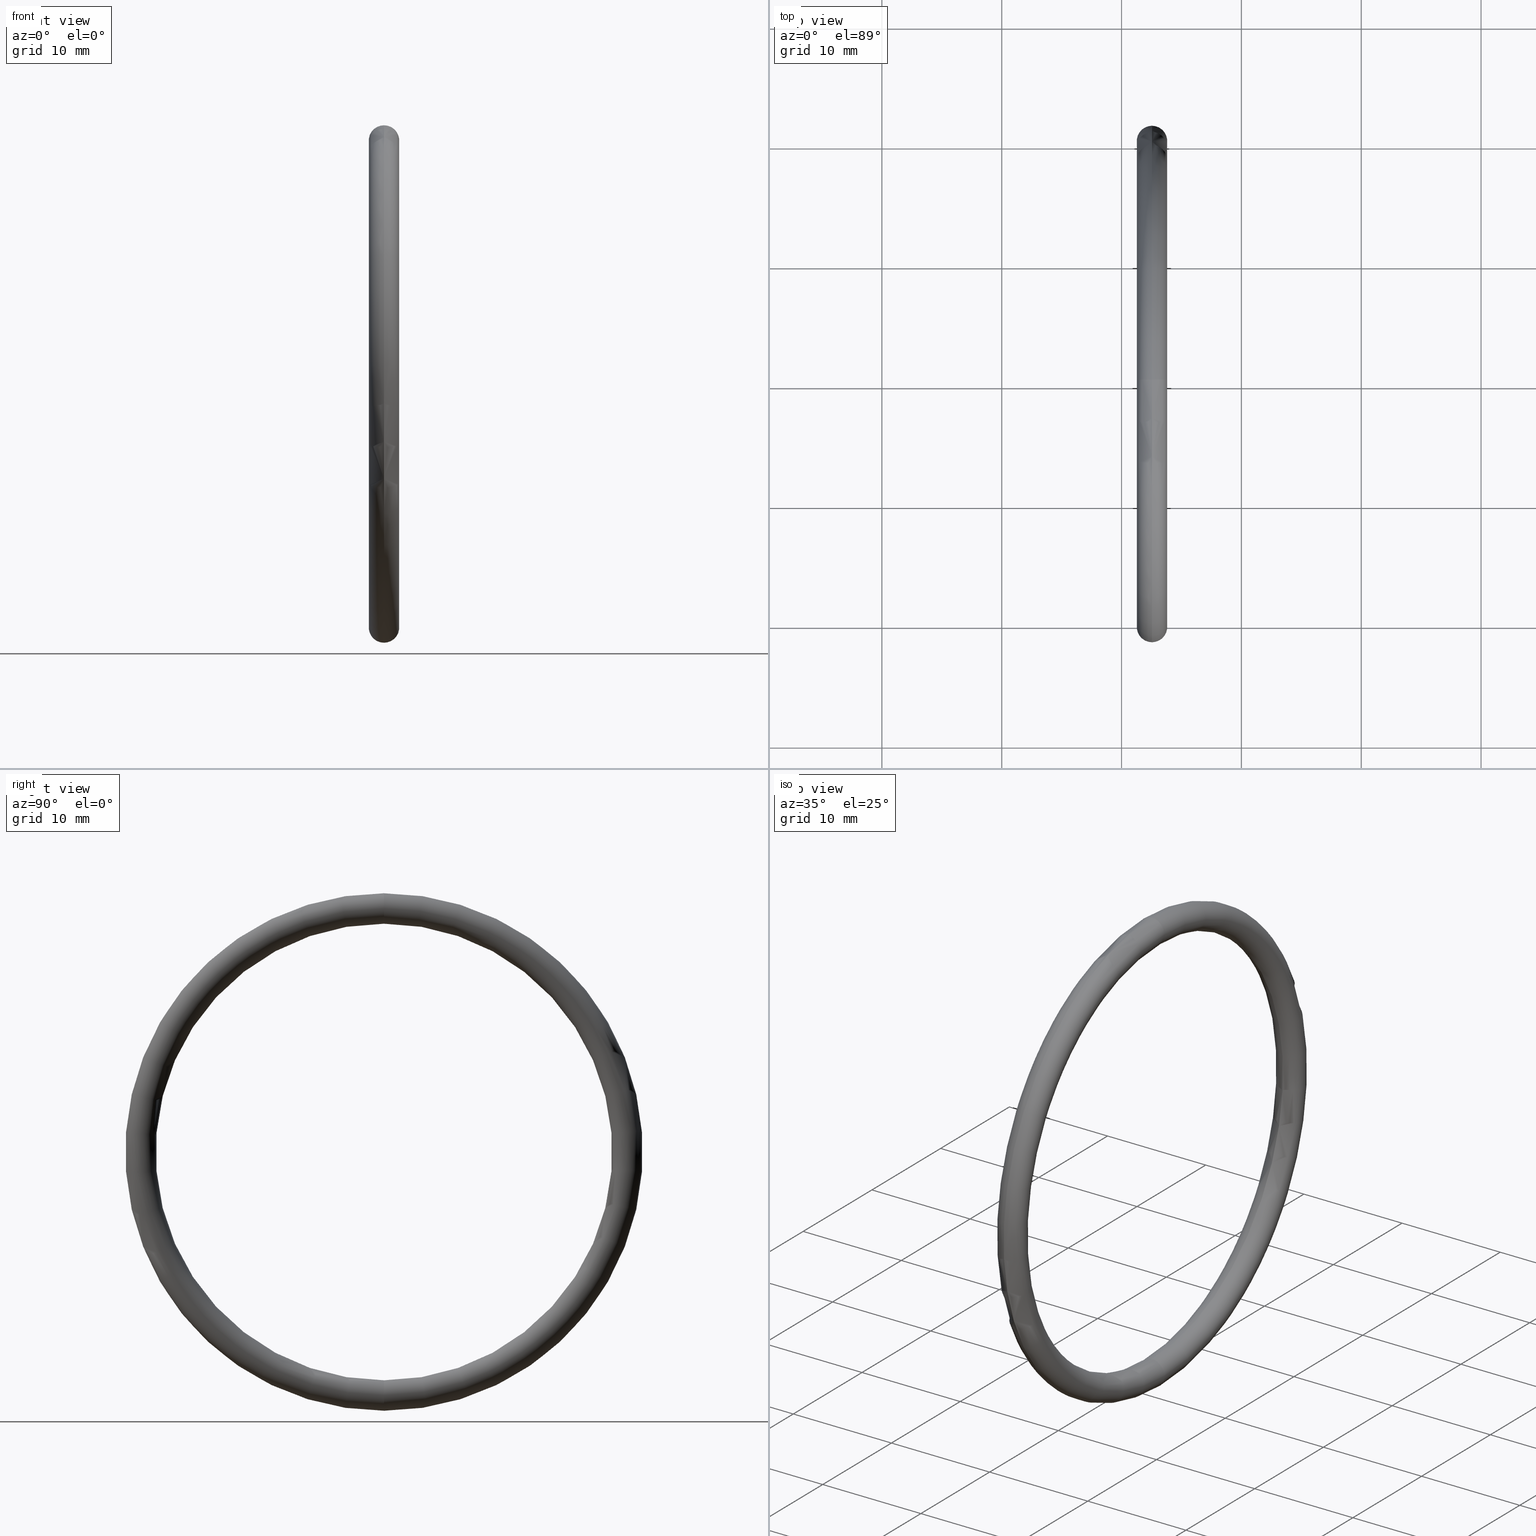
[diagram: canonical four-view strip — front | top / right | iso, engineering-drawing reading convention]
A machine part, canonical four-view strip (front | top / right | iso — engineering-drawing reading convention). The complete STEP part file that produces these views, byte-faithful:
ISO-10303-21;
HEADER;
FILE_DESCRIPTION (( 'STEP AP203' ),
    '1' );
FILE_NAME ('OR-54-SI.STEP',
    '2006-03-03T07:49:50',
    ( 'bay06' ),
    ( '' ),
    'SwSTEP 2.0',
    'SolidWorks 2008',
    '' );
FILE_SCHEMA (( 'CONFIG_CONTROL_DESIGN' ));
ENDSEC;

DATA;
#1 = PERSON_AND_ORGANIZATION ( #111, #125 ) ;
#2 = DIRECTION ( 'NONE',  ( 0.0000000000000000000, 0.0000000000000000000, 1.000000000000000000 ) ) ;
#3 = TOROIDAL_SURFACE ( 'NONE', #38, 0.8000000000000000400, 0.05000000000000000300 ) ;
#4 = CARTESIAN_POINT ( 'NONE',  ( 0.1000000000000001200, 0.0000000000000000000, 0.0000000000000000000 ) ) ;
#5 = DIRECTION ( 'NONE',  ( 0.0000000000000000000, 0.0000000000000000000, 1.000000000000000000 ) ) ;
#6 = DIRECTION ( 'NONE',  ( -1.000000000000000000, -0.0000000000000000000, -0.0000000000000000000 ) ) ;
#7 = CARTESIAN_POINT ( 'NONE',  ( 0.1000000000000001200, 0.0000000000000000000, 0.0000000000000000000 ) ) ;
#8 = AXIS2_PLACEMENT_3D ( 'NONE', #7, #6, #5 ) ;
#9 = CIRCLE ( 'NONE', #8, 0.7500000000000001100 ) ;
#10 = FACE_OUTER_BOUND ( 'NONE', #14, .T. ) ;
#11 = ORIENTED_EDGE ( 'NONE', *, *, #12, .F. ) ;
#12 = EDGE_CURVE ( 'NONE', #76, #82, #9, .T. ) ;
#13 = ADVANCED_FACE ( 'NONE', ( #10 ), #3, .T. ) ;
#14 = EDGE_LOOP ( 'NONE', ( #43, #47, #85, #49 ) ) ;
#15 = MANIFOLD_SOLID_BREP ( 'NONE', #42 ) ;
#16 = ADVANCED_FACE ( 'NONE', ( #39 ), #35, .T. ) ;
#17 = EDGE_LOOP ( 'NONE', ( #74, #77, #80, #11 ) ) ;
#18 = VERTEX_POINT ( 'NONE', #34 ) ;
#19 = DIRECTION ( 'NONE',  ( 0.0000000000000000000, 0.0000000000000000000, 1.000000000000000000 ) ) ;
#20 = DIRECTION ( 'NONE',  ( -1.000000000000000000, -0.0000000000000000000, -0.0000000000000000000 ) ) ;
#21 = AXIS2_PLACEMENT_3D ( 'NONE', #29, #20, #19 ) ;
#22 = CIRCLE ( 'NONE', #21, 0.8500000000000000900 ) ;
#23 = CARTESIAN_POINT ( 'NONE',  ( 0.1000000000000001200, 0.0000000000000000000, 0.0000000000000000000 ) ) ;
#24 = DIRECTION ( 'NONE',  ( 0.0000000000000000000, 0.0000000000000000000, -1.000000000000000000 ) ) ;
#25 = DIRECTION ( 'NONE',  ( 0.0000000000000000000, -1.000000000000000000, 0.0000000000000000000 ) ) ;
#26 = CARTESIAN_POINT ( 'NONE',  ( 0.1000000000000001200, 0.0000000000000000000, 0.8000000000000000400 ) ) ;
#27 = AXIS2_PLACEMENT_3D ( 'NONE', #26, #25, #24 ) ;
#28 = CIRCLE ( 'NONE', #27, 0.05000000000000001000 ) ;
#29 = CARTESIAN_POINT ( 'NONE',  ( 0.1000000000000001200, 0.0000000000000000000, 0.0000000000000000000 ) ) ;
#30 = DIRECTION ( 'NONE',  ( 0.0000000000000000000, 0.0000000000000000000, 1.000000000000000000 ) ) ;
#31 = DIRECTION ( 'NONE',  ( -1.000000000000000000, -0.0000000000000000000, -0.0000000000000000000 ) ) ;
#32 = CARTESIAN_POINT ( 'NONE',  ( 0.1000000000000001200, 0.0000000000000000000, 0.0000000000000000000 ) ) ;
#33 = AXIS2_PLACEMENT_3D ( 'NONE', #32, #31, #30 ) ;
#34 = CARTESIAN_POINT ( 'NONE',  ( 0.1000000000000001200, 1.040949779275250400E-016, -0.8500000000000000900 ) ) ;
#35 = TOROIDAL_SURFACE ( 'NONE', #33, 0.8000000000000000400, 0.05000000000000000300 ) ;
#36 = DIRECTION ( 'NONE',  ( 0.0000000000000000000, 0.0000000000000000000, 1.000000000000000000 ) ) ;
#37 = DIRECTION ( 'NONE',  ( -1.000000000000000000, -0.0000000000000000000, -0.0000000000000000000 ) ) ;
#38 = AXIS2_PLACEMENT_3D ( 'NONE', #4, #37, #36 ) ;
#39 = FACE_OUTER_BOUND ( 'NONE', #17, .T. ) ;
#40 = ORIENTED_EDGE ( 'NONE', *, *, #12, .T. ) ;
#41 = ORIENTED_EDGE ( 'NONE', *, *, #45, .T. ) ;
#42 = CLOSED_SHELL ( 'NONE', ( #16, #13, #51, #54 ) ) ;
#43 = ORIENTED_EDGE ( 'NONE', *, *, #81, .F. ) ;
#44 = ORIENTED_EDGE ( 'NONE', *, *, #45, .F. ) ;
#45 = EDGE_CURVE ( 'NONE', #82, #79, #28, .T. ) ;
#46 = EDGE_LOOP ( 'NONE', ( #84, #44, #57, #56 ) ) ;
#47 = ORIENTED_EDGE ( 'NONE', *, *, #48, .T. ) ;
#48 = EDGE_CURVE ( 'NONE', #79, #18, #22, .T. ) ;
#49 = ORIENTED_EDGE ( 'NONE', *, *, #50, .F. ) ;
#50 = EDGE_CURVE ( 'NONE', #82, #76, #102, .T. ) ;
#51 = ADVANCED_FACE ( 'NONE', ( #103 ), #97, .T. ) ;
#52 = ORIENTED_EDGE ( 'NONE', *, *, #53, .F. ) ;
#53 = EDGE_CURVE ( 'NONE', #76, #18, #92, .T. ) ;
#54 = ADVANCED_FACE ( 'NONE', ( #93 ), #71, .T. ) ;
#55 = ORIENTED_EDGE ( 'NONE', *, *, #78, .F. ) ;
#56 = ORIENTED_EDGE ( 'NONE', *, *, #53, .T. ) ;
#57 = ORIENTED_EDGE ( 'NONE', *, *, #50, .T. ) ;
#58 = DIRECTION ( 'NONE',  ( -1.000000000000000000, -0.0000000000000000000, -0.0000000000000000000 ) ) ;
#59 = CARTESIAN_POINT ( 'NONE',  ( 0.1000000000000001200, 0.0000000000000000000, 0.0000000000000000000 ) ) ;
#60 = AXIS2_PLACEMENT_3D ( 'NONE', #59, #58, #2 ) ;
#61 = CIRCLE ( 'NONE', #60, 0.8500000000000000900 ) ;
#62 = PERSON_AND_ORGANIZATION_ROLE ( 'design_owner' ) ;
#63 = CARTESIAN_POINT ( 'NONE',  ( 0.1000000000000001200, 9.184850993605150900E-017, -0.7500000000000001100 ) ) ;
#64 = DIRECTION ( 'NONE',  ( 0.0000000000000000000, -1.224646799147351700E-016, 1.000000000000000000 ) ) ;
#65 = DIRECTION ( 'NONE',  ( -0.0000000000000000000, 1.000000000000000000, 1.224646799147353200E-016 ) ) ;
#66 = CARTESIAN_POINT ( 'NONE',  ( 0.1000000000000001200, 9.797174393178826200E-017, -0.8000000000000000400 ) ) ;
#67 = AXIS2_PLACEMENT_3D ( 'NONE', #66, #65, #64 ) ;
#68 = DIRECTION ( 'NONE',  ( 0.0000000000000000000, 0.0000000000000000000, 1.000000000000000000 ) ) ;
#69 = DIRECTION ( 'NONE',  ( -1.000000000000000000, -0.0000000000000000000, -0.0000000000000000000 ) ) ;
#70 = AXIS2_PLACEMENT_3D ( 'NONE', #73, #69, #68 ) ;
#71 = TOROIDAL_SURFACE ( 'NONE', #70, 0.8000000000000000400, 0.05000000000000000300 ) ;
#72 = CIRCLE ( 'NONE', #67, 0.05000000000000001000 ) ;
#73 = CARTESIAN_POINT ( 'NONE',  ( 0.1000000000000001200, 0.0000000000000000000, 0.0000000000000000000 ) ) ;
#74 = ORIENTED_EDGE ( 'NONE', *, *, #75, .F. ) ;
#75 = EDGE_CURVE ( 'NONE', #18, #76, #72, .T. ) ;
#76 = VERTEX_POINT ( 'NONE', #63 ) ;
#77 = ORIENTED_EDGE ( 'NONE', *, *, #78, .T. ) ;
#78 = EDGE_CURVE ( 'NONE', #18, #79, #61, .T. ) ;
#79 = VERTEX_POINT ( 'NONE', #115 ) ;
#80 = ORIENTED_EDGE ( 'NONE', *, *, #81, .T. ) ;
#81 = EDGE_CURVE ( 'NONE', #79, #82, #129, .T. ) ;
#82 = VERTEX_POINT ( 'NONE', #123 ) ;
#83 = EDGE_LOOP ( 'NONE', ( #55, #52, #40, #41 ) ) ;
#84 = ORIENTED_EDGE ( 'NONE', *, *, #48, .F. ) ;
#85 = ORIENTED_EDGE ( 'NONE', *, *, #75, .T. ) ;
#86 = APPLICATION_CONTEXT ( 'configuration controlled 3d designs of mechanical parts and assemblies' ) ;
#87 = CC_DESIGN_PERSON_AND_ORGANIZATION_ASSIGNMENT ( #1, #62, ( #112 ) ) ;
#88 = DIRECTION ( 'NONE',  ( 0.0000000000000000000, -1.224646799147351700E-016, 1.000000000000000000 ) ) ;
#89 = DIRECTION ( 'NONE',  ( -0.0000000000000000000, 1.000000000000000000, 1.224646799147353200E-016 ) ) ;
#90 = CARTESIAN_POINT ( 'NONE',  ( 0.1000000000000001200, 9.797174393178826200E-017, -0.8000000000000000400 ) ) ;
#91 = AXIS2_PLACEMENT_3D ( 'NONE', #90, #89, #88 ) ;
#92 = CIRCLE ( 'NONE', #91, 0.05000000000000001000 ) ;
#93 = FACE_OUTER_BOUND ( 'NONE', #83, .T. ) ;
#94 = DIRECTION ( 'NONE',  ( 0.0000000000000000000, 0.0000000000000000000, 1.000000000000000000 ) ) ;
#95 = DIRECTION ( 'NONE',  ( -1.000000000000000000, -0.0000000000000000000, -0.0000000000000000000 ) ) ;
#96 = AXIS2_PLACEMENT_3D ( 'NONE', #98, #95, #94 ) ;
#97 = TOROIDAL_SURFACE ( 'NONE', #96, 0.8000000000000000400, 0.05000000000000000300 ) ;
#98 = CARTESIAN_POINT ( 'NONE',  ( 0.1000000000000001200, 0.0000000000000000000, 0.0000000000000000000 ) ) ;
#99 = DIRECTION ( 'NONE',  ( 0.0000000000000000000, 0.0000000000000000000, 1.000000000000000000 ) ) ;
#100 = DIRECTION ( 'NONE',  ( -1.000000000000000000, -0.0000000000000000000, -0.0000000000000000000 ) ) ;
#101 = AXIS2_PLACEMENT_3D ( 'NONE', #23, #100, #99 ) ;
#102 = CIRCLE ( 'NONE', #101, 0.7500000000000001100 ) ;
#103 = FACE_OUTER_BOUND ( 'NONE', #46, .T. ) ;
#104 = UNCERTAINTY_MEASURE_WITH_UNIT (LENGTH_MEASURE( 1.000000000000000100E-005 ), #106, 'distance_accuracy_value', 'NONE');
#105 =( NAMED_UNIT ( * ) SI_UNIT ( $, .STERADIAN. ) SOLID_ANGLE_UNIT ( ) );
#106 =( CONVERSION_BASED_UNIT ( 'INCH', #119 ) LENGTH_UNIT ( ) NAMED_UNIT ( #110 ) );
#107 =( NAMED_UNIT ( * ) PLANE_ANGLE_UNIT ( ) SI_UNIT ( $, .RADIAN. ) );
#108 = DIRECTION ( 'NONE',  ( 0.0000000000000000000, 0.0000000000000000000, -1.000000000000000000 ) ) ;
#109 = DIRECTION ( 'NONE',  ( 1.000000000000000000, 0.0000000000000000000, 0.0000000000000000000 ) ) ;
#110 = DIMENSIONAL_EXPONENTS ( 1.000000000000000000, 0.0000000000000000000, 0.0000000000000000000, 0.0000000000000000000, 0.0000000000000000000, 0.0000000000000000000, 0.0000000000000000000 ) ;
#111 = PERSON ( 'UNSPECIFIED', 'UNSPECIFIED', 'UNSPECIFIED', ('UNSPECIFIED'), ('UNSPECIFIED'), ('UNSPECIFIED') ) ;
#112 = PRODUCT ( 'OR-54-SI', 'OR-54-SI', '', ( #113 ) ) ;
#113 = MECHANICAL_CONTEXT ( 'NONE', #128, 'mechanical' ) ;
#114 = APPLICATION_PROTOCOL_DEFINITION ( 'international standard', 'config_control_design', 1994, #128 ) ;
#115 = CARTESIAN_POINT ( 'NONE',  ( 0.1000000000000001200, 0.0000000000000000000, 0.8500000000000000900 ) ) ;
#116 = DIRECTION ( 'NONE',  ( 0.0000000000000000000, 0.0000000000000000000, 1.000000000000000000 ) ) ;
#117 = AXIS2_PLACEMENT_3D ( 'NONE', #120, #116, #109 ) ;
#118 = AXIS2_PLACEMENT_3D ( 'NONE', #121, #127, #108 ) ;
#119 = LENGTH_MEASURE_WITH_UNIT ( LENGTH_MEASURE( 0.02539999999999999900 ), #126 );
#120 = CARTESIAN_POINT ( 'NONE',  ( 0.0000000000000000000, 0.0000000000000000000, 0.0000000000000000000 ) ) ;
#121 = CARTESIAN_POINT ( 'NONE',  ( 0.1000000000000001200, 0.0000000000000000000, 0.8000000000000000400 ) ) ;
#122 = ADVANCED_BREP_SHAPE_REPRESENTATION ( 'OR-54-SI', ( #15, #117 ), #124 ) ;
#123 = CARTESIAN_POINT ( 'NONE',  ( 0.1000000000000001200, 0.0000000000000000000, 0.7500000000000001100 ) ) ;
#124 =( GEOMETRIC_REPRESENTATION_CONTEXT ( 3 ) GLOBAL_UNCERTAINTY_ASSIGNED_CONTEXT ( ( #104 ) ) GLOBAL_UNIT_ASSIGNED_CONTEXT ( ( #106, #107, #105 ) ) REPRESENTATION_CONTEXT ( 'NONE', 'WORKASPACE' ) );
#125 = ORGANIZATION ( 'UNSPECIFIED', 'UNSPECIFIED', '' ) ;
#126 =( LENGTH_UNIT ( ) NAMED_UNIT ( * ) SI_UNIT ( $, .METRE. ) );
#127 = DIRECTION ( 'NONE',  ( 0.0000000000000000000, -1.000000000000000000, 0.0000000000000000000 ) ) ;
#128 = APPLICATION_CONTEXT ( 'configuration controlled 3d designs of mechanical parts and assemblies' ) ;
#129 = CIRCLE ( 'NONE', #118, 0.05000000000000001000 ) ;
#130 = DATE_AND_TIME ( #131, #159 ) ;
#131 = CALENDAR_DATE ( 2006, 3, 3 ) ;
#132 = APPROVAL_STATUS ( 'not_yet_approved' ) ;
#133 = PERSON_AND_ORGANIZATION ( #111, #125 ) ;
#134 = PRODUCT_DEFINITION_FORMATION_WITH_SPECIFIED_SOURCE ( 'ANY', '', #112, .NOT_KNOWN. ) ;
#135 = APPROVAL_PERSON_ORGANIZATION ( #189, #191, #141 ) ;
#136 = SHAPE_DEFINITION_REPRESENTATION ( #137, #122 ) ;
#137 = PRODUCT_DEFINITION_SHAPE ( 'NONE', 'NONE',  #179 ) ;
#138 = PRODUCT_RELATED_PRODUCT_CATEGORY ( 'detail', '', ( #112 ) ) ;
#139 = PERSON_AND_ORGANIZATION_ROLE ( 'creator' ) ;
#140 = PERSON_AND_ORGANIZATION ( #111, #125 ) ;
#141 = APPROVAL_ROLE ( '' ) ;
#142 = DATE_AND_TIME ( #156, #143 ) ;
#143 = LOCAL_TIME ( 13, 19, 50.00000000000000000, #144 ) ;
#144 = COORDINATED_UNIVERSAL_TIME_OFFSET ( 5, 30, .AHEAD. ) ;
#145 = CC_DESIGN_PERSON_AND_ORGANIZATION_ASSIGNMENT ( #147, #146, ( #174 ) ) ;
#146 = PERSON_AND_ORGANIZATION_ROLE ( 'classification_officer' ) ;
#147 = PERSON_AND_ORGANIZATION ( #111, #125 ) ;
#148 = COORDINATED_UNIVERSAL_TIME_OFFSET ( 5, 30, .AHEAD. ) ;
#149 = APPROVAL_PERSON_ORGANIZATION ( #153, #151, #150 ) ;
#150 = APPROVAL_ROLE ( '' ) ;
#151 = APPROVAL ( #152, 'UNSPECIFIED' ) ;
#152 = APPROVAL_STATUS ( 'not_yet_approved' ) ;
#153 = PERSON_AND_ORGANIZATION ( #111, #125 ) ;
#154 = CC_DESIGN_DATE_AND_TIME_ASSIGNMENT ( #142, #155, ( #174 ) ) ;
#155 = DATE_TIME_ROLE ( 'classification_date' ) ;
#156 = CALENDAR_DATE ( 2006, 3, 3 ) ;
#157 = CC_DESIGN_APPROVAL ( #191, ( #179 ) ) ;
#158 = APPROVAL_DATE_TIME ( #130, #191 ) ;
#159 = LOCAL_TIME ( 13, 19, 50.00000000000000000, #160 ) ;
#160 = COORDINATED_UNIVERSAL_TIME_OFFSET ( 5, 30, .AHEAD. ) ;
#161 = CC_DESIGN_PERSON_AND_ORGANIZATION_ASSIGNMENT ( #163, #162, ( #134 ) ) ;
#162 = PERSON_AND_ORGANIZATION_ROLE ( 'creator' ) ;
#163 = PERSON_AND_ORGANIZATION ( #111, #125 ) ;
#164 = CC_DESIGN_APPROVAL ( #187, ( #134 ) ) ;
#165 = APPROVAL_DATE_TIME ( #181, #187 ) ;
#166 = CC_DESIGN_SECURITY_CLASSIFICATION ( #174, ( #134 ) ) ;
#167 = CC_DESIGN_APPROVAL ( #151, ( #174 ) ) ;
#168 = APPROVAL_DATE_TIME ( #169, #151 ) ;
#169 = DATE_AND_TIME ( #170, #171 ) ;
#170 = CALENDAR_DATE ( 2006, 3, 3 ) ;
#171 = LOCAL_TIME ( 13, 19, 50.00000000000000000, #148 ) ;
#172 = DATE_AND_TIME ( #194, #195 ) ;
#173 = CC_DESIGN_PERSON_AND_ORGANIZATION_ASSIGNMENT ( #140, #139, ( #179 ) ) ;
#174 = SECURITY_CLASSIFICATION ( '', '', #175 ) ;
#175 = SECURITY_CLASSIFICATION_LEVEL ( 'unclassified' ) ;
#176 = CC_DESIGN_PERSON_AND_ORGANIZATION_ASSIGNMENT ( #178, #177, ( #134 ) ) ;
#177 = PERSON_AND_ORGANIZATION_ROLE ( 'design_supplier' ) ;
#178 = PERSON_AND_ORGANIZATION ( #111, #125 ) ;
#179 = PRODUCT_DEFINITION ( 'UNKNOWN', '', #134, #188 ) ;
#180 = APPROVAL_STATUS ( 'not_yet_approved' ) ;
#181 = DATE_AND_TIME ( #182, #183 ) ;
#182 = CALENDAR_DATE ( 2006, 3, 3 ) ;
#183 = LOCAL_TIME ( 13, 19, 50.00000000000000000, #184 ) ;
#184 = COORDINATED_UNIVERSAL_TIME_OFFSET ( 5, 30, .AHEAD. ) ;
#185 = APPROVAL_PERSON_ORGANIZATION ( #133, #187, #186 ) ;
#186 = APPROVAL_ROLE ( '' ) ;
#187 = APPROVAL ( #132, 'UNSPECIFIED' ) ;
#188 = DESIGN_CONTEXT ( 'detailed design', #86, 'design' ) ;
#189 = PERSON_AND_ORGANIZATION ( #111, #125 ) ;
#190 = APPLICATION_PROTOCOL_DEFINITION ( 'international standard', 'config_control_design', 1994, #86 ) ;
#191 = APPROVAL ( #180, 'UNSPECIFIED' ) ;
#192 = CC_DESIGN_DATE_AND_TIME_ASSIGNMENT ( #172, #193, ( #179 ) ) ;
#193 = DATE_TIME_ROLE ( 'creation_date' ) ;
#194 = CALENDAR_DATE ( 2006, 3, 3 ) ;
#195 = LOCAL_TIME ( 13, 19, 50.00000000000000000, #196 ) ;
#196 = COORDINATED_UNIVERSAL_TIME_OFFSET ( 5, 30, .AHEAD. ) ;
ENDSEC;
END-ISO-10303-21;
